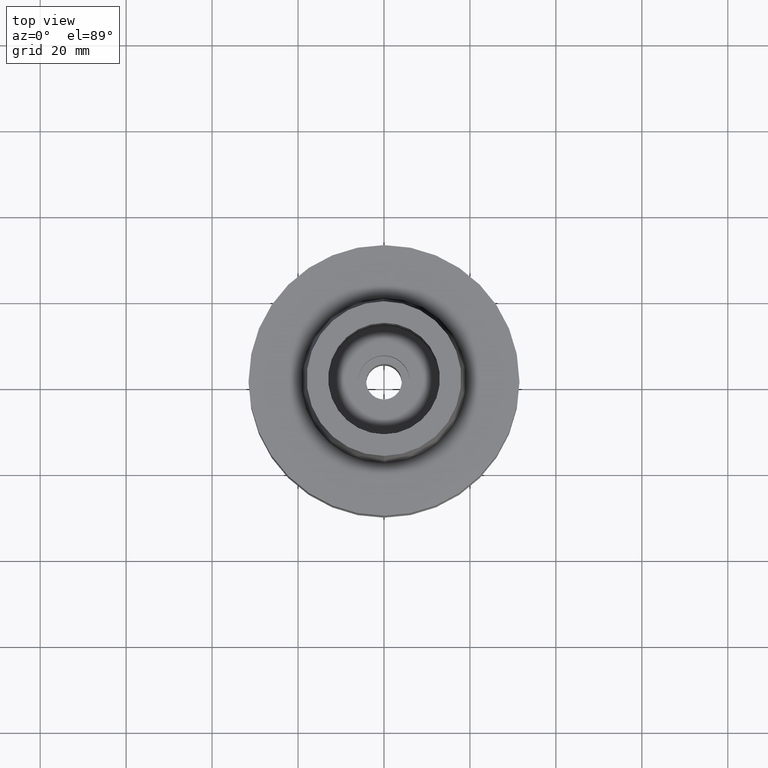
[diagram: clean part render]
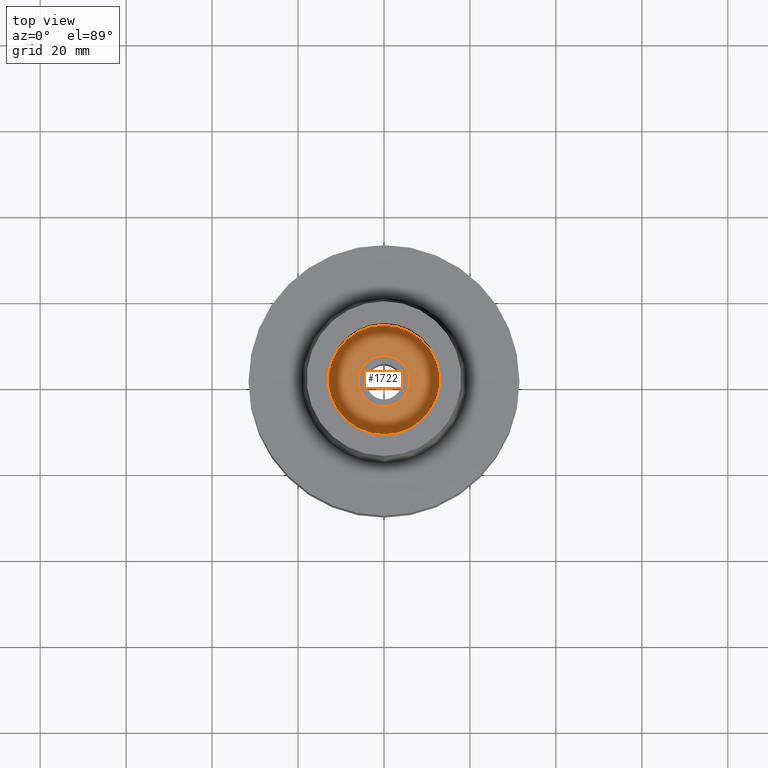
[diagram: same view with one face highlighted and labeled with its STEP entity id]
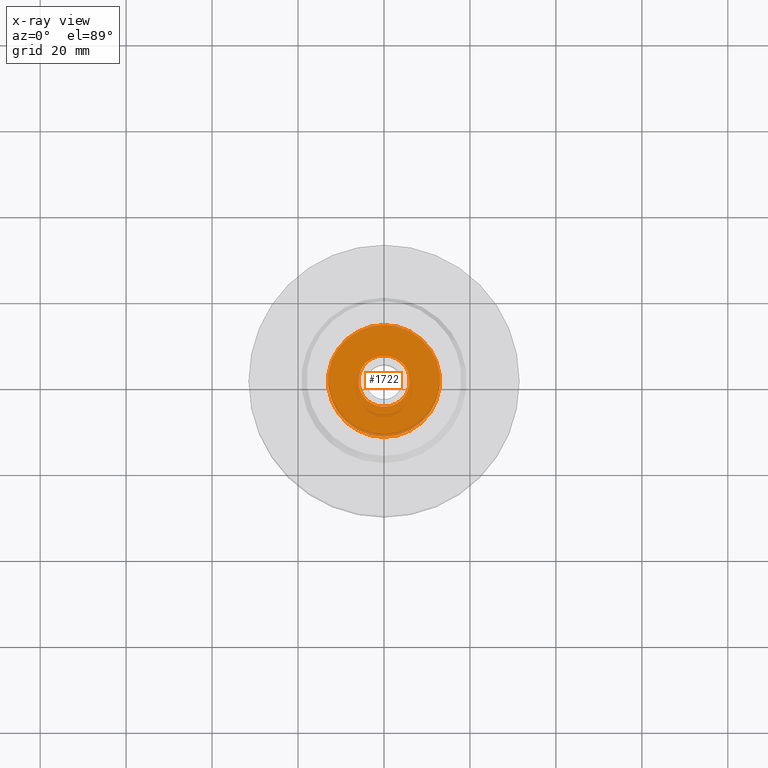
[diagram: x-ray of the same camera — body ghosted, the highlighted face saturated]
A machine part, top view. The second image highlights one B-rep face of the part: STEP entity #1722.
The next image is the same camera in x-ray: the body ghosted, the highlighted face saturated — about 4% of this face is hidden behind the body in this view.
In plain terms, the highlighted planar face has unit normal (0, 0, 1).
Its self-contained STEP definition (entity closure, byte-faithful):
#12 = AXIS2_PLACEMENT_3D ( 'NONE', #237, #2251, #2223 ) ;
#15 = FACE_BOUND ( 'NONE', #2548, .T. ) ;
#168 = CIRCLE ( 'NONE', #294, 13.00000000000000000 ) ;
#237 = CARTESIAN_POINT ( 'NONE',  ( 0.0000000000000000000, 0.0000000000000000000, -9.950000000000001066 ) ) ;
#245 = CIRCLE ( 'NONE', #2132, 6.000000000000000000 ) ;
#262 = CIRCLE ( 'NONE', #1015, 13.00000000000000000 ) ;
#282 = DIRECTION ( 'NONE',  ( 0.0000000000000000000, 0.0000000000000000000, 1.000000000000000000 ) ) ;
#287 = CIRCLE ( 'NONE', #1450, 6.000000000000000000 ) ;
#294 = AXIS2_PLACEMENT_3D ( 'NONE', #1999, #963, #1382 ) ;
#311 = DIRECTION ( 'NONE',  ( 0.0000000000000000000, 0.0000000000000000000, 1.000000000000000000 ) ) ;
#332 = ORIENTED_EDGE ( 'NONE', *, *, #1383, .F. ) ;
#333 = DIRECTION ( 'NONE',  ( 0.0000000000000000000, 1.000000000000000000, 0.0000000000000000000 ) ) ;
#392 = VERTEX_POINT ( 'NONE', #2294 ) ;
#475 = EDGE_CURVE ( 'NONE', #1582, #1752, #262, .T. ) ;
#747 = ORIENTED_EDGE ( 'NONE', *, *, #1088, .F. ) ;
#753 = DIRECTION ( 'NONE',  ( 0.0000000000000000000, 1.000000000000000000, 0.0000000000000000000 ) ) ;
#963 = DIRECTION ( 'NONE',  ( 0.0000000000000000000, 0.0000000000000000000, -1.000000000000000000 ) ) ;
#1015 = AXIS2_PLACEMENT_3D ( 'NONE', #1029, #1891, #333 ) ;
#1029 = CARTESIAN_POINT ( 'NONE',  ( 0.0000000000000000000, 0.0000000000000000000, -9.950000000000001066 ) ) ;
#1088 = EDGE_CURVE ( 'NONE', #2376, #392, #287, .T. ) ;
#1122 = CARTESIAN_POINT ( 'NONE',  ( 0.0000000000000000000, 13.00000000000000000, -9.950000000000001066 ) ) ;
#1345 = PLANE ( 'NONE',  #12 ) ;
#1382 = DIRECTION ( 'NONE',  ( 0.0000000000000000000, -1.000000000000000000, 0.0000000000000000000 ) ) ;
#1383 = EDGE_CURVE ( 'NONE', #392, #2376, #245, .T. ) ;
#1450 = AXIS2_PLACEMENT_3D ( 'NONE', #2284, #311, #2300 ) ;
#1582 = VERTEX_POINT ( 'NONE', #1122 ) ;
#1638 = CARTESIAN_POINT ( 'NONE',  ( 0.0000000000000000000, 0.0000000000000000000, -9.950000000000001066 ) ) ;
#1722 = ADVANCED_FACE ( 'NONE', ( #2438, #15 ), #1345, .T. ) ;
#1752 = VERTEX_POINT ( 'NONE', #2217 ) ;
#1880 = EDGE_LOOP ( 'NONE', ( #2184, #1948 ) ) ;
#1891 = DIRECTION ( 'NONE',  ( 0.0000000000000000000, 0.0000000000000000000, -1.000000000000000000 ) ) ;
#1948 = ORIENTED_EDGE ( 'NONE', *, *, #2268, .F. ) ;
#1999 = CARTESIAN_POINT ( 'NONE',  ( 0.0000000000000000000, 0.0000000000000000000, -9.950000000000001066 ) ) ;
#2132 = AXIS2_PLACEMENT_3D ( 'NONE', #1638, #282, #753 ) ;
#2184 = ORIENTED_EDGE ( 'NONE', *, *, #475, .F. ) ;
#2207 = CARTESIAN_POINT ( 'NONE',  ( 0.0000000000000000000, -6.000000000000000000, -9.950000000000001066 ) ) ;
#2217 = CARTESIAN_POINT ( 'NONE',  ( 0.0000000000000000000, -13.00000000000000000, -9.950000000000001066 ) ) ;
#2223 = DIRECTION ( 'NONE',  ( 1.000000000000000000, 0.0000000000000000000, 0.0000000000000000000 ) ) ;
#2251 = DIRECTION ( 'NONE',  ( 0.0000000000000000000, 0.0000000000000000000, 1.000000000000000000 ) ) ;
#2268 = EDGE_CURVE ( 'NONE', #1752, #1582, #168, .T. ) ;
#2284 = CARTESIAN_POINT ( 'NONE',  ( 0.0000000000000000000, 0.0000000000000000000, -9.950000000000001066 ) ) ;
#2294 = CARTESIAN_POINT ( 'NONE',  ( 0.0000000000000000000, 6.000000000000000000, -9.950000000000001066 ) ) ;
#2300 = DIRECTION ( 'NONE',  ( 0.0000000000000000000, -1.000000000000000000, 0.0000000000000000000 ) ) ;
#2376 = VERTEX_POINT ( 'NONE', #2207 ) ;
#2438 = FACE_OUTER_BOUND ( 'NONE', #1880, .T. ) ;
#2548 = EDGE_LOOP ( 'NONE', ( #332, #747 ) ) ;